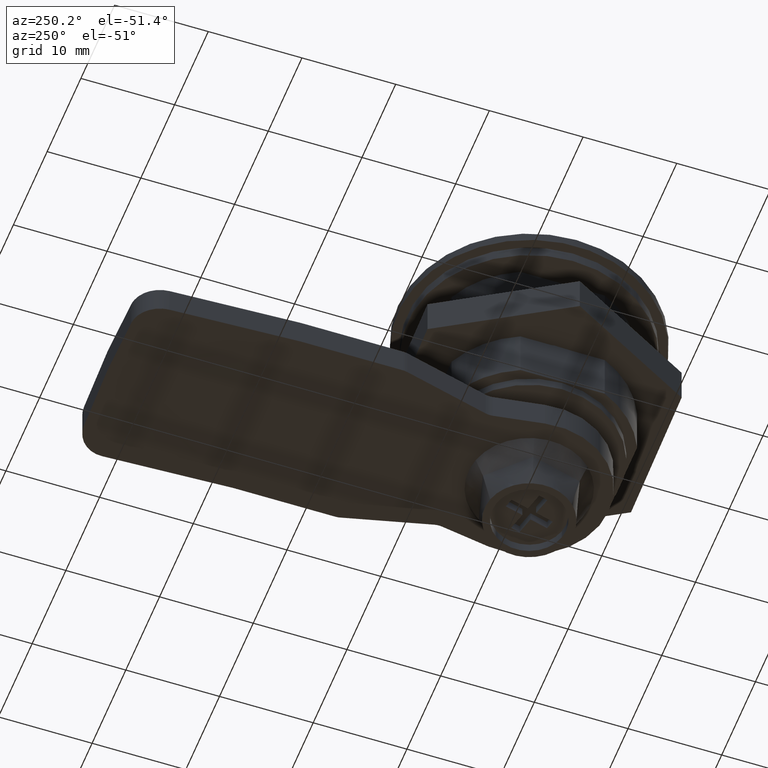
[diagram: clean part render]
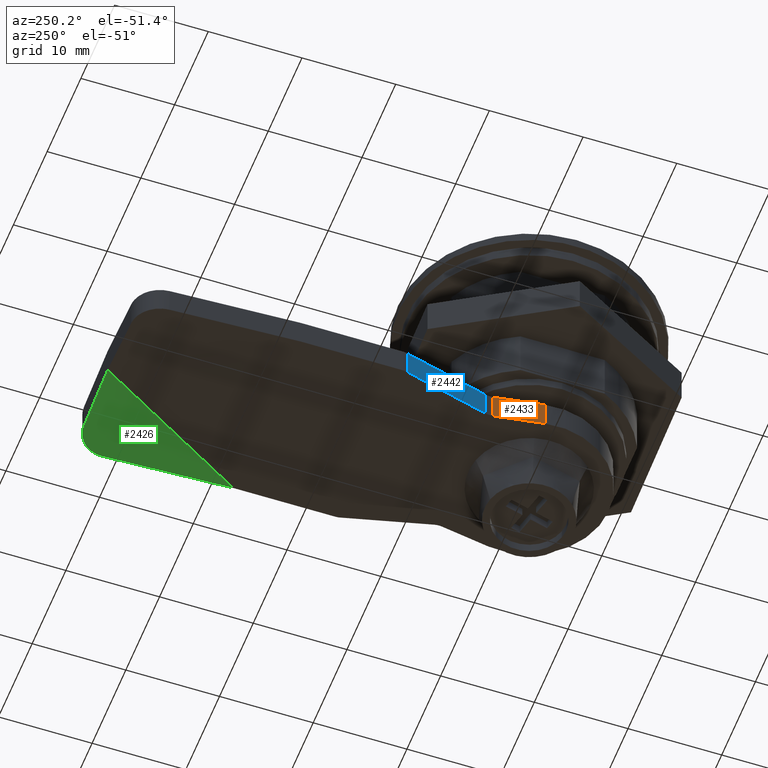
[diagram: same view with three faces highlighted in distinct colors, each labeled with its STEP entity id]
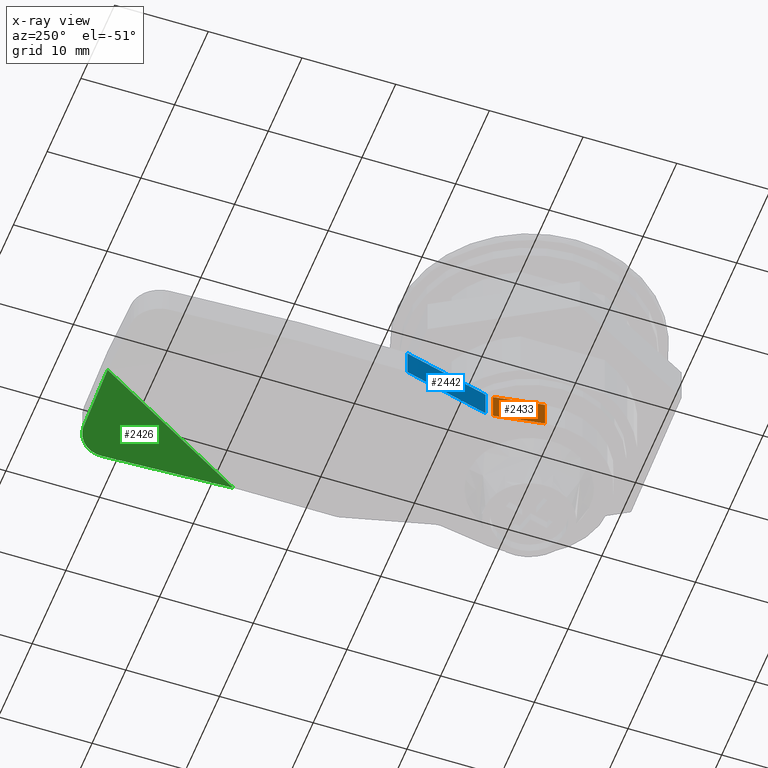
[diagram: x-ray of the same camera — body ghosted, the three highlighted faces saturated]
A machine part, auxiliary view with three faces highlighted in distinct colors.
The next image is the same camera in x-ray (body ghosted, the three faces saturated) — at least one of them is partly hidden behind the body in this view.
Their STEP definitions:

[orange] entity #2433 — the highlighted planar face has unit normal (-0.9878, 0.156, 0).
#212=LINE('',#3892,#429);
#227=LINE('',#3949,#444);
#238=LINE('',#3974,#455);
#240=LINE('',#3977,#457);
#429=VECTOR('',#3044,5.33353893290968);
#444=VECTOR('',#3075,5.33353893290968);
#455=VECTOR('',#3100,3.);
#457=VECTOR('',#3104,3.);
#674=FACE_OUTER_BOUND('',#845,.T.);
#845=EDGE_LOOP('',(#1903,#1904,#1905,#1906));
#1142=VERTEX_POINT('',#3889);
#1143=VERTEX_POINT('',#3891);
#1160=VERTEX_POINT('',#3946);
#1161=VERTEX_POINT('',#3948);
#1404=EDGE_CURVE('',#1142,#1143,#212,.T.);
#1425=EDGE_CURVE('',#1161,#1160,#227,.T.);
#1438=EDGE_CURVE('',#1161,#1142,#238,.T.);
#1440=EDGE_CURVE('',#1160,#1143,#240,.T.);
#1903=ORIENTED_EDGE('',*,*,#1438,.F.);
#1904=ORIENTED_EDGE('',*,*,#1425,.T.);
#1905=ORIENTED_EDGE('',*,*,#1440,.T.);
#1906=ORIENTED_EDGE('',*,*,#1404,.F.);
#2310=PLANE('',#2637);
#2433=ADVANCED_FACE('',(#674),#2310,.T.);
#2637=AXIS2_PLACEMENT_3D('',#3976,#3102,#3103);
#3044=DIRECTION('',(-0.155969407610117,-0.987761886230558,0.));
#3075=DIRECTION('',(-0.155969407610117,-0.987761886230558,0.));
#3100=DIRECTION('',(0.,0.,1.));
#3102=DIRECTION('center_axis',(-0.987761886230558,0.155969407610117,0.));
#3103=DIRECTION('ref_axis',(-0.155969407610117,-0.987761886230558,0.));
#3104=DIRECTION('',(0.,0.,1.));
#3889=CARTESIAN_POINT('',(-7.56410712512832,6.59400644134097,3.));
#3891=CARTESIAN_POINT('',(-8.39597603295974,1.32573996468599,3.));
#3892=CARTESIAN_POINT('',(-7.5,7.,3.));
#3946=CARTESIAN_POINT('',(-8.39597603295974,1.32573996468599,0.));
#3948=CARTESIAN_POINT('',(-7.56410712512832,6.59400644134097,0.));
#3949=CARTESIAN_POINT('',(-7.5,7.,0.));
#3974=CARTESIAN_POINT('',(-7.56410712512832,6.59400644134097,0.));
#3976=CARTESIAN_POINT('Origin',(-7.5,7.,0.));
#3977=CARTESIAN_POINT('',(-8.39597603295974,1.32573996468599,0.));

[blue] entity #2442 — the highlighted planar face has unit normal (-0.9692, -0.2462, 0).
#211=LINE('',#3888,#428);
#228=LINE('',#3953,#445);
#235=LINE('',#3967,#452);
#239=LINE('',#3975,#456);
#428=VECTOR('',#3041,9.49273631215416);
#445=VECTOR('',#3078,9.49273631215416);
#452=VECTOR('',#3089,3.);
#456=VECTOR('',#3101,3.);
#683=FACE_OUTER_BOUND('',#854,.T.);
#854=EDGE_LOOP('',(#1938,#1939,#1940,#1941));
#1140=VERTEX_POINT('',#3885);
#1141=VERTEX_POINT('',#3887);
#1162=VERTEX_POINT('',#3950);
#1163=VERTEX_POINT('',#3952);
#1402=EDGE_CURVE('',#1140,#1141,#211,.T.);
#1427=EDGE_CURVE('',#1163,#1162,#228,.T.);
#1435=EDGE_CURVE('',#1163,#1140,#235,.T.);
#1439=EDGE_CURVE('',#1141,#1162,#239,.T.);
#1938=ORIENTED_EDGE('',*,*,#1435,.F.);
#1939=ORIENTED_EDGE('',*,*,#1427,.T.);
#1940=ORIENTED_EDGE('',*,*,#1439,.F.);
#1941=ORIENTED_EDGE('',*,*,#1402,.F.);
#2318=PLANE('',#2646);
#2442=ADVANCED_FACE('',(#683),#2318,.T.);
#2646=AXIS2_PLACEMENT_3D('',#3993,#3128,#3129);
#3041=DIRECTION('',(0.246212713882306,-0.96921581679351,0.));
#3078=DIRECTION('',(0.246212713882306,-0.96921581679351,0.));
#3089=DIRECTION('',(0.,0.,1.));
#3101=DIRECTION('',(0.,0.,-1.));
#3128=DIRECTION('center_axis',(-0.96921581679351,-0.246212713882306,0.));
#3129=DIRECTION('ref_axis',(0.246212713882306,-0.96921581679351,0.));
#3885=CARTESIAN_POINT('',(-9.93843163358701,16.5988808627157,3.));
#3887=CARTESIAN_POINT('',(-7.60119926400242,7.39837068432581,3.));
#3888=CARTESIAN_POINT('',(-9.99999999999999,16.8412446042166,3.));
#3950=CARTESIAN_POINT('',(-7.60119926400242,7.39837068432581,0.));
#3952=CARTESIAN_POINT('',(-9.93843163358701,16.5988808627157,0.));
#3953=CARTESIAN_POINT('',(-9.99999999999999,16.8412446042166,0.));
#3967=CARTESIAN_POINT('',(-9.93843163358701,16.5988808627157,0.));
#3975=CARTESIAN_POINT('',(-7.60119926400242,7.39837068432581,0.));
#3993=CARTESIAN_POINT('Origin',(-9.99999999999999,16.8412446042166,0.));

[green] entity #2426 — the highlighted face is a freeform B-spline surface patch.
#50=B_SPLINE_SURFACE_WITH_KNOTS('',3,3,((#3914,#3915,#3916,#3917),(#3918,
#3919,#3920,#3921),(#3922,#3923,#3924,#3925),(#3926,#3927,#3928,#3929)),
 .UNSPECIFIED.,.F.,.F.,.F.,(4,4),(4,4),(0.,1.),(0.,1.),.UNSPECIFIED.);
#65=B_SPLINE_CURVE_WITH_KNOTS('',3,(#3777,#3778,#3779,#3780,#3781,#3782,
#3783,#3784,#3785,#3786,#3787,#3788,#3789,#3790),.UNSPECIFIED.,.F.,.F.,
(4,2,2,2,2,2,4),(0.,0.0110969306600239,0.0793445852573731,0.176104317760304,
0.294213491415582,0.413289891087251,0.473207675366786),.UNSPECIFIED.);
#205=LINE('',#3774,#422);
#221=LINE('',#3931,#438);
#222=LINE('',#3933,#439);
#223=LINE('',#3934,#440);
#422=VECTOR('',#3029,7.03491293478463);
#438=VECTOR('',#3061,14.0242005366453);
#439=VECTOR('',#3062,0.0099999999999989);
#440=VECTOR('',#3063,19.7180146059384);
#667=FACE_OUTER_BOUND('',#837,.T.);
#837=EDGE_LOOP('',(#1855,#1856,#1857,#1858,#1859));
#1126=VERTEX_POINT('',#3754);
#1134=VERTEX_POINT('',#3772);
#1135=VERTEX_POINT('',#3776);
#1153=VERTEX_POINT('',#3930);
#1154=VERTEX_POINT('',#3932);
#1391=EDGE_CURVE('',#1134,#1126,#205,.T.);
#1392=EDGE_CURVE('',#1135,#1134,#65,.T.);
#1416=EDGE_CURVE('',#1153,#1135,#221,.T.);
#1417=EDGE_CURVE('',#1154,#1153,#222,.T.);
#1418=EDGE_CURVE('',#1126,#1154,#223,.T.);
#1855=ORIENTED_EDGE('',*,*,#1392,.F.);
#1856=ORIENTED_EDGE('',*,*,#1416,.F.);
#1857=ORIENTED_EDGE('',*,*,#1417,.F.);
#1858=ORIENTED_EDGE('',*,*,#1418,.F.);
#1859=ORIENTED_EDGE('',*,*,#1391,.F.);
#2426=ADVANCED_FACE('',(#667),#50,.T.);
#3029=DIRECTION('',(-0.995037190209989,0.,0.099503719020999));
#3061=DIRECTION('',(-2.60778163292265E-16,0.998274373174996,-0.0587220219514704));
#3062=DIRECTION('',(1.,1.47175542018944E-24,0.));
#3063=DIRECTION('',(0.506643300537537,-0.862155766680494,0.));
#3754=CARTESIAN_POINT('',(-2.2094263978589E-15,45.,2.20942639785891E-16));
#3772=CARTESIAN_POINT('',(7.,45.,-0.700000000000001));
#3774=CARTESIAN_POINT('',(0.,45.,0.));
#3776=CARTESIAN_POINT('',(9.99999999999999,42.,-0.823529411764706));
#3777=CARTESIAN_POINT('Ctrl Pts',(10.,42.,-0.823529411764707));
#3778=CARTESIAN_POINT('Ctrl Pts',(10.,42.0369259383293,-0.82570152578408));
#3779=CARTESIAN_POINT('Ctrl Pts',(9.99931823753976,42.0738526404086,-0.827805523084689));
#3780=CARTESIAN_POINT('Ctrl Pts',(9.98956824242194,42.3377540627935,-0.842354331642187));
#3781=CARTESIAN_POINT('Ctrl Pts',(9.955424179433,42.5631780472524,-0.852200796009091));
#3782=CARTESIAN_POINT('Ctrl Pts',(9.81199671027024,43.0938916596117,-0.869078219060807));
#3783=CARTESIAN_POINT('Ctrl Pts',(9.67825775143384,43.3895860652606,-0.873099231846196));
#3784=CARTESIAN_POINT('Ctrl Pts',(9.28236442837163,43.9864014018144,-0.868618007126996));
#3785=CARTESIAN_POINT('Ctrl Pts',(9.00243400946865,44.2682302045065,-0.85720303538086));
#3786=CARTESIAN_POINT('Ctrl Pts',(8.34758165972934,44.7094605638006,-0.817670909098085));
#3787=CARTESIAN_POINT('Ctrl Pts',(7.97858069916526,44.8633526408735,-0.789821802536299));
#3788=CARTESIAN_POINT('Ctrl Pts',(7.39573580763932,44.9804354517655,-0.738423068943045));
#3789=CARTESIAN_POINT('Ctrl Pts',(7.19781549267365,45.,-0.719781549267366));
#3790=CARTESIAN_POINT('Ctrl Pts',(7.,45.,-0.700000000000001));
#3914=CARTESIAN_POINT('Ctrl Pts',(9.99999999999999,28.,0.));
#3915=CARTESIAN_POINT('Ctrl Pts',(9.99999999999999,33.6666666666667,-0.333333333333333));
#3916=CARTESIAN_POINT('Ctrl Pts',(9.99999999999999,39.3333333333333,-0.666666666666667));
#3917=CARTESIAN_POINT('Ctrl Pts',(9.99999999999999,45.,-1.));
#3918=CARTESIAN_POINT('Ctrl Pts',(9.99666666666666,28.,0.));
#3919=CARTESIAN_POINT('Ctrl Pts',(8.88666666666666,33.6666666666667,-0.222222222222222));
#3920=CARTESIAN_POINT('Ctrl Pts',(7.77666666666666,39.3333333333333,-0.444444444444444));
#3921=CARTESIAN_POINT('Ctrl Pts',(6.66666666666666,45.,-0.666666666666667));
#3922=CARTESIAN_POINT('Ctrl Pts',(9.99333333333333,28.,0.));
#3923=CARTESIAN_POINT('Ctrl Pts',(7.77333333333332,33.6666666666667,-0.111111111111111));
#3924=CARTESIAN_POINT('Ctrl Pts',(5.55333333333333,39.3333333333333,-0.222222222222222));
#3925=CARTESIAN_POINT('Ctrl Pts',(3.33333333333333,45.,-0.333333333333333));
#3926=CARTESIAN_POINT('Ctrl Pts',(9.99,28.,0.));
#3927=CARTESIAN_POINT('Ctrl Pts',(6.66,33.6666666666667,7.36475465952968E-17));
#3928=CARTESIAN_POINT('Ctrl Pts',(3.33,39.3333333333333,1.47295093190594E-16));
#3929=CARTESIAN_POINT('Ctrl Pts',(-2.2094263978589E-15,45.,2.20942639785891E-16));
#3930=CARTESIAN_POINT('',(10.,28.,0.));
#3931=CARTESIAN_POINT('',(9.99999999999999,28.,0.));
#3932=CARTESIAN_POINT('',(9.99,28.,0.));
#3933=CARTESIAN_POINT('',(4.9975,28.,0.));
#3934=CARTESIAN_POINT('',(14.8231227152731,19.7754668508867,0.));